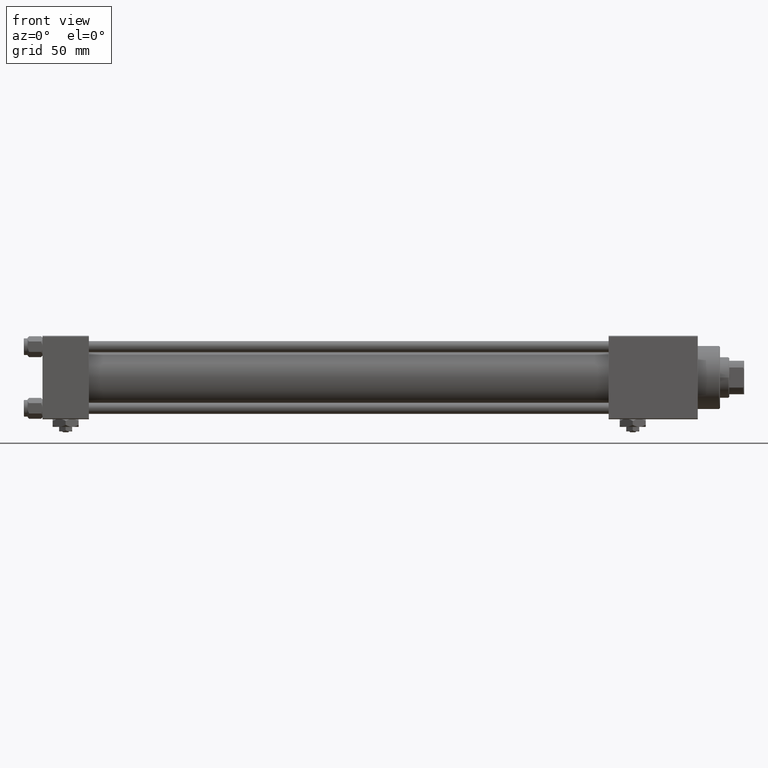
[diagram: clean part render]
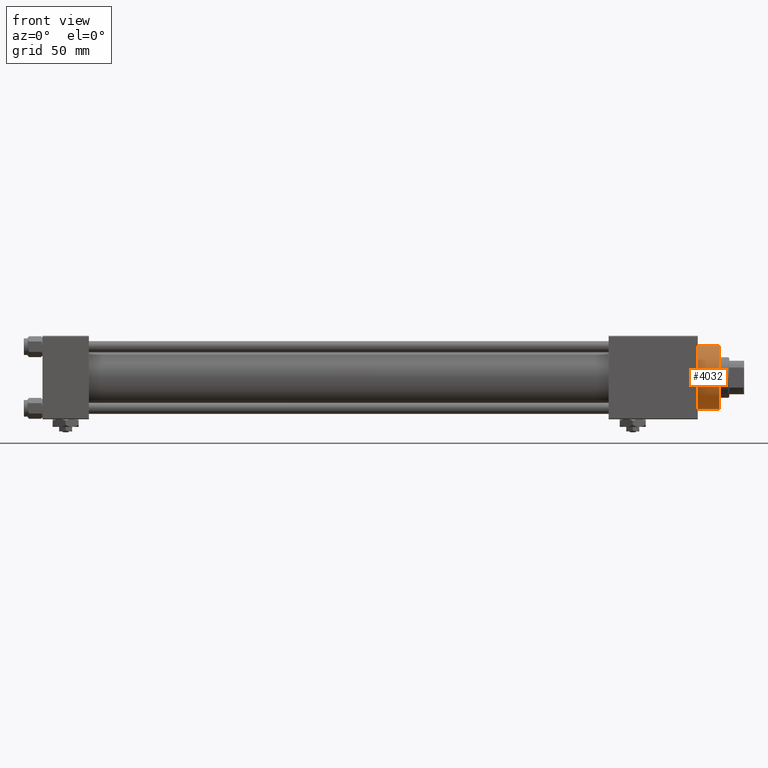
[diagram: same view with one face highlighted and labeled with its STEP entity id]
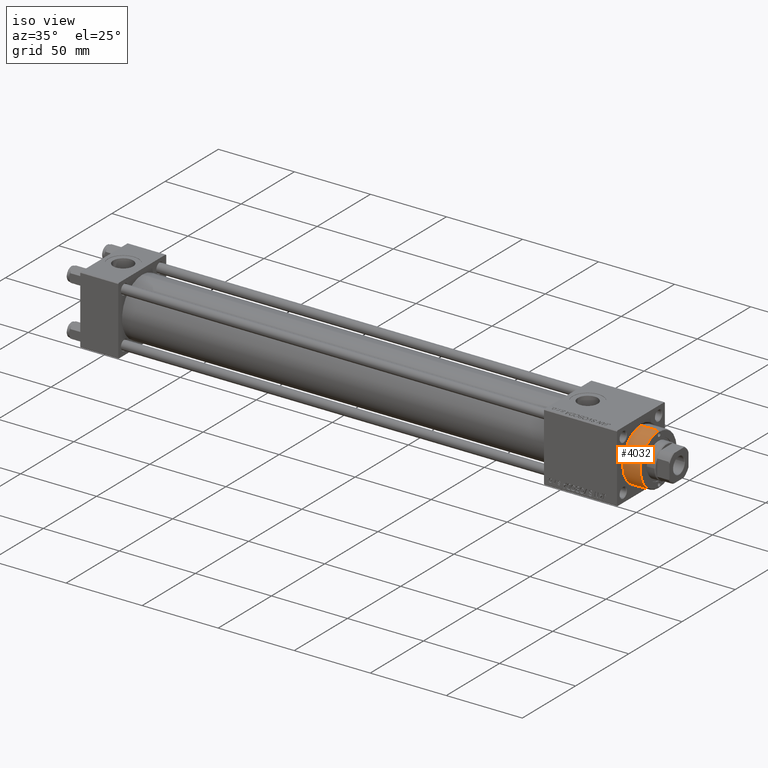
[diagram: same view with one face highlighted and labeled with its STEP entity id]
A machine part, front view. The second image highlights one B-rep face of the part: STEP entity #4032.
A second angle (iso view) of the same face is appended — the face is thin or edge-on in the first view.
In plain terms, the highlighted cylindrical surface (edge-blend (fillet) strip) has radius 17 mm, axis along (-1, -0, -0).
Its self-contained STEP definition (entity closure, byte-faithful):
#2709 = CIRCLE ( 'NONE', #6146, 17.00000000000000000 ) ;
#2878 = LINE ( 'NONE', #23681, #25871 ) ;
#3487 = VERTEX_POINT ( 'NONE', #3766 ) ;
#3578 = EDGE_CURVE ( 'NONE', #30937, #47405, #40539, .T. ) ;
#3766 = CARTESIAN_POINT ( 'NONE',  ( -17.00000000000000000, 0.000000000000000000, 28.69999999999999929 ) ) ;
#4032 = ADVANCED_FACE ( 'NONE', ( #25279 ), #13386, .T. ) ;
#6146 = AXIS2_PLACEMENT_3D ( 'NONE', #51768, #27383, #35788 ) ;
#7992 = CARTESIAN_POINT ( 'NONE',  ( 17.00000000000000000, 2.081899558550500280E-15, 28.69999999999999929 ) ) ;
#8920 = DIRECTION ( 'NONE',  ( 0.000000000000000000, 0.000000000000000000, -1.000000000000000000 ) ) ;
#10331 = DIRECTION ( 'NONE',  ( -0.000000000000000000, -0.000000000000000000, -1.000000000000000000 ) ) ;
#10376 = DIRECTION ( 'NONE',  ( -1.000000000000000000, 0.000000000000000000, 0.000000000000000000 ) ) ;
#12817 = EDGE_CURVE ( 'NONE', #30937, #25687, #18454, .T. ) ;
#13386 = CYLINDRICAL_SURFACE ( 'NONE', #30175, 17.00000000000000000 ) ;
#18454 = LINE ( 'NONE', #27893, #30364 ) ;
#20917 = ORIENTED_EDGE ( 'NONE', *, *, #22295, .T. ) ;
#22295 = EDGE_CURVE ( 'NONE', #47405, #3487, #2878, .T. ) ;
#23681 = CARTESIAN_POINT ( 'NONE',  ( -17.00000000000000000, 0.000000000000000000, 40.70000000000000284 ) ) ;
#23715 = ORIENTED_EDGE ( 'NONE', *, *, #12817, .F. ) ;
#24084 = AXIS2_PLACEMENT_3D ( 'NONE', #44928, #8920, #32740 ) ;
#25279 = FACE_OUTER_BOUND ( 'NONE', #51707, .T. ) ;
#25687 = VERTEX_POINT ( 'NONE', #7992 ) ;
#25807 = DIRECTION ( 'NONE',  ( -0.000000000000000000, -0.000000000000000000, -1.000000000000000000 ) ) ;
#25871 = VECTOR ( 'NONE', #40223, 1000.000000000000000 ) ;
#27383 = DIRECTION ( 'NONE',  ( 0.000000000000000000, 0.000000000000000000, 1.000000000000000000 ) ) ;
#27893 = CARTESIAN_POINT ( 'NONE',  ( 17.00000000000000000, 2.081899558550500280E-15, 40.70000000000000284 ) ) ;
#28580 = CARTESIAN_POINT ( 'NONE',  ( 17.00000000000000000, 2.081899558550500280E-15, 40.19999999999999574 ) ) ;
#30175 = AXIS2_PLACEMENT_3D ( 'NONE', #49928, #25807, #10376 ) ;
#30364 = VECTOR ( 'NONE', #10331, 1000.000000000000000 ) ;
#30937 = VERTEX_POINT ( 'NONE', #28580 ) ;
#32740 = DIRECTION ( 'NONE',  ( 1.000000000000000000, 0.000000000000000000, 0.000000000000000000 ) ) ;
#33090 = ORIENTED_EDGE ( 'NONE', *, *, #52399, .T. ) ;
#35788 = DIRECTION ( 'NONE',  ( 1.000000000000000000, 0.000000000000000000, 0.000000000000000000 ) ) ;
#36190 = ORIENTED_EDGE ( 'NONE', *, *, #3578, .T. ) ;
#38524 = CARTESIAN_POINT ( 'NONE',  ( -17.00000000000000000, 0.000000000000000000, 40.19999999999999574 ) ) ;
#40223 = DIRECTION ( 'NONE',  ( -0.000000000000000000, -0.000000000000000000, -1.000000000000000000 ) ) ;
#40539 = CIRCLE ( 'NONE', #24084, 17.00000000000000000 ) ;
#44928 = CARTESIAN_POINT ( 'NONE',  ( 0.000000000000000000, 0.000000000000000000, 40.19999999999999574 ) ) ;
#47405 = VERTEX_POINT ( 'NONE', #38524 ) ;
#49928 = CARTESIAN_POINT ( 'NONE',  ( 0.000000000000000000, 0.000000000000000000, 40.70000000000000284 ) ) ;
#51707 = EDGE_LOOP ( 'NONE', ( #23715, #36190, #20917, #33090 ) ) ;
#51768 = CARTESIAN_POINT ( 'NONE',  ( 0.000000000000000000, 0.000000000000000000, 28.69999999999999929 ) ) ;
#52399 = EDGE_CURVE ( 'NONE', #3487, #25687, #2709, .T. ) ;